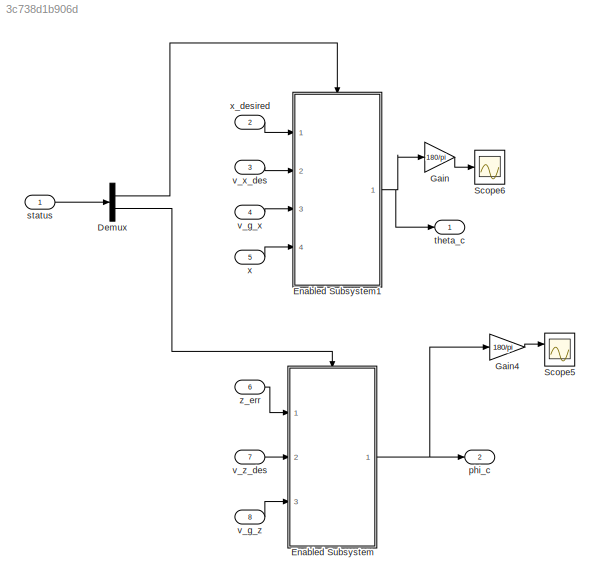
MODEL slx_3c738d1b906d
KIND model
CONFIG AbsTol = auto
CONFIG EnableMultiTasking = off
CONFIG FixedStep = auto
CONFIG MaxStep = auto
CONFIG MinStep = auto
CONFIG RelTol = 1e-3
CONFIG SampleTimeConstraint = Unconstrained
CONFIG Solver = VariableStepAuto
CONFIG SolverName = VariableStepAuto
CONFIG StartTime = 0.0
CONFIG StopTime = 10.0
BLOCK [Demux] Demux
  Outputs = 2
  Ports = [1, 2]
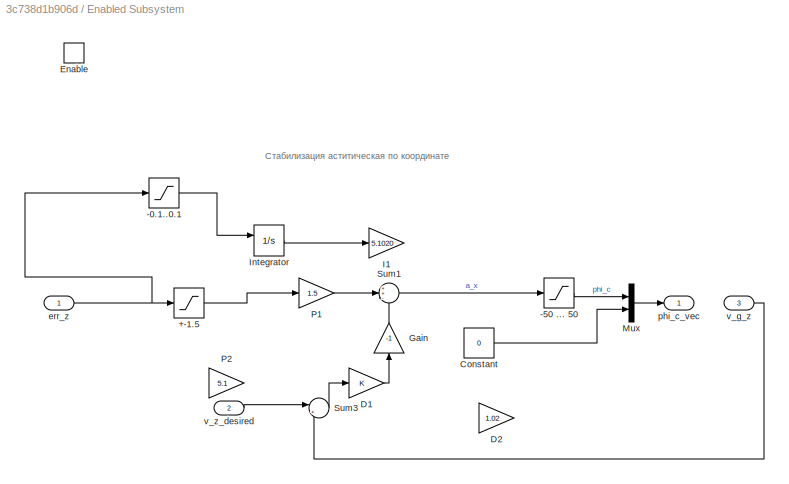
BLOCK [SubSystem] Enabled Subsystem
  Ports = [3, 1, 1]
  RequestExecContextInheritance = off
  TreatAsAtomicUnit = on
BLOCK [Saturate] Enabled Subsystem/+-1.5
  LowerLimit = -1.5
  UpperLimit = 1.5
BLOCK [Saturate] Enabled Subsystem/-0.1..0.1
  LowerLimit = -0.1
  UpperLimit = 0.1
BLOCK [Saturate] Enabled Subsystem/-50 ... 50
  LowerLimit = deg2rad(-50)
  UpperLimit = deg2rad(50)
BLOCK [Constant] Enabled Subsystem/Constant
  Value = 0
BLOCK [Gain] Enabled Subsystem/D1
BLOCK [Gain] Enabled Subsystem/D2
  Commented = on
  Gain = 1.02
BLOCK [EnablePort] Enabled Subsystem/Enable
  Ports = []
BLOCK [Gain] Enabled Subsystem/Gain
  Gain = -1
  NameLocation = right
BLOCK [Gain] Enabled Subsystem/I1
  Gain = 5.1020
BLOCK [Integrator] Enabled Subsystem/Integrator
  ExternalReset = either
  Ports = [2, 1]
BLOCK [Mux] Enabled Subsystem/Mux
  DisplayOption = bar
  Inputs = 2
  Ports = [2, 1]
BLOCK [Gain] Enabled Subsystem/P1
  Gain = 1.5
BLOCK [Gain] Enabled Subsystem/P2
  Commented = on
  Gain = 5.1
BLOCK [Sum] Enabled Subsystem/Sum1
  Inputs = ++-
  Ports = [3, 1]
BLOCK [Sum] Enabled Subsystem/Sum3
  Inputs = |+-
  Ports = [2, 1]
BLOCK [Inport] Enabled Subsystem/err_z
BLOCK [Outport] Enabled Subsystem/phi_c_vec
BLOCK [Inport] Enabled Subsystem/v_g_z
  Port = 3
BLOCK [Inport] Enabled Subsystem/v_z_desired
  Port = 2
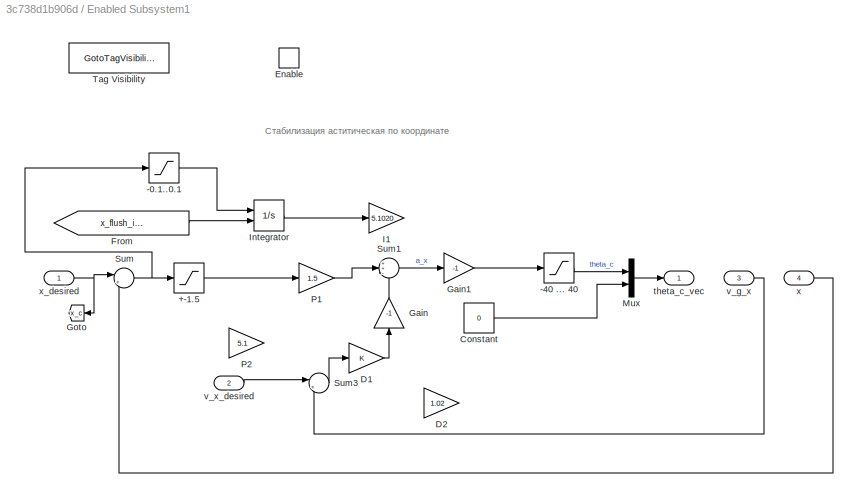
BLOCK [SubSystem] Enabled Subsystem1
  Ports = [4, 1, 1]
  RequestExecContextInheritance = off
  TreatAsAtomicUnit = on
BLOCK [Saturate] Enabled Subsystem1/+-1.5
  LowerLimit = -1.5
  UpperLimit = 1.5
BLOCK [Saturate] Enabled Subsystem1/-0.1..0.1
  LowerLimit = -0.1
  UpperLimit = 0.1
BLOCK [Saturate] Enabled Subsystem1/-40 ... 40
  LowerLimit = deg2rad(-50)
  UpperLimit = deg2rad(50)
BLOCK [Constant] Enabled Subsystem1/Constant
  Value = 0
BLOCK [Gain] Enabled Subsystem1/D1
BLOCK [Gain] Enabled Subsystem1/D2
  Commented = on
  Gain = 1.02
BLOCK [EnablePort] Enabled Subsystem1/Enable
  Ports = []
BLOCK [From] Enabled Subsystem1/From
  GotoTag = x_flush_integrator
BLOCK [Gain] Enabled Subsystem1/Gain
  Gain = -1
  NameLocation = right
BLOCK [Gain] Enabled Subsystem1/Gain1
  Gain = -1
BLOCK [Goto] Enabled Subsystem1/Goto
  GotoTag = x_c
  NameLocation = top
BLOCK [Gain] Enabled Subsystem1/I1
  Gain = 5.1020
BLOCK [Integrator] Enabled Subsystem1/Integrator
  ExternalReset = either
  Ports = [2, 1]
BLOCK [Mux] Enabled Subsystem1/Mux
  DisplayOption = bar
  Inputs = 2
  Ports = [2, 1]
BLOCK [Gain] Enabled Subsystem1/P1
  Gain = 1.5
BLOCK [Gain] Enabled Subsystem1/P2
  Commented = on
  Gain = 5.1
BLOCK [Sum] Enabled Subsystem1/Sum
  Inputs = |+-
  Ports = [2, 1]
BLOCK [Sum] Enabled Subsystem1/Sum1
  Inputs = ++-
  Ports = [3, 1]
BLOCK [Sum] Enabled Subsystem1/Sum3
  Inputs = |+-
  Ports = [2, 1]
BLOCK [GotoTagVisibility] Enabled Subsystem1/Tag Visibility
  GotoTag = x_flush_integrator
BLOCK [Outport] Enabled Subsystem1/theta_c_vec
BLOCK [Inport] Enabled Subsystem1/v_g_x
  Port = 3
BLOCK [Inport] Enabled Subsystem1/v_x_desired
  Port = 2
BLOCK [Inport] Enabled Subsystem1/x
  Port = 4
BLOCK [Inport] Enabled Subsystem1/x_desired
BLOCK [Gain] Gain
  Gain = 180/pi
BLOCK [Gain] Gain4
  Gain = 180/pi
BLOCK [Scope] Scope5
  Floating = off
  NumInputPorts = 2
  Ports = [2]
  ScopeSpecificationString = Simulink.scopes.TimeScopeBlockCfg('CurrentConfiguration', extmgr.ConfigurationSet(extmgr.Configuration('Core','General UI',true),extmgr.Configuration('Core','Source UI',true),extmgr.Configuration('Sources','WiredSimulink',true),extmgr.Configuration('Visuals','Time Domain',true,'SerializedDisplays',{struct('MinYLimReal','-62.5','MaxYLimReal','62.5','YLabelReal','','MinYLimMag','0.00000','MaxYLimMag...<+1521ch>
BLOCK [Scope] Scope6
  Floating = off
  NumInputPorts = 1
  Ports = [1]
  ScopeSpecificationString = Simulink.scopes.TimeScopeBlockCfg('CurrentConfiguration', extmgr.ConfigurationSet(extmgr.Configuration('Core','General UI',true),extmgr.Configuration('Core','Source UI',true),extmgr.Configuration('Sources','WiredSimulink',true,'DataLoggingVariableName','ScopeData1'),extmgr.Configuration('Visuals','Time Domain',true,'SerializedDisplays',{struct('MinYLimReal','-62.5','MaxYLimReal','62.5','YLabelReal...<+1531ch>
BLOCK [Outport] phi_c
  Port = 2
BLOCK [Inport] status
BLOCK [Outport] theta_c
BLOCK [Inport] v_g_x
  Port = 4
BLOCK [Inport] v_g_z
  Port = 8
BLOCK [Inport] v_x_des
  Port = 3
BLOCK [Inport] v_z_des
  Port = 7
BLOCK [Inport] x
  Port = 5
BLOCK [Inport] x_desired
  Port = 2
BLOCK [Inport] z_err
  Port = 6
ANNOTATION Enabled Subsystem: Стабилизация аститическая по координате
ANNOTATION Enabled Subsystem1: Стабилизация аститическая по координате
LINE Demux:1 -> Enabled Subsystem1:enable
LINE Demux:2 -> Enabled Subsystem:enable
LINE Enabled Subsystem/+-1.5:1 -> Enabled Subsystem/P1:1
LINE Enabled Subsystem/-0.1..0.1:1 -> Enabled Subsystem/Integrator:1
LINE Enabled Subsystem/-50 ... 50:1 -> Enabled Subsystem/Mux:1
LINE Enabled Subsystem/Constant:1 -> Enabled Subsystem/Mux:2
LINE Enabled Subsystem/D1:1 -> Enabled Subsystem/Gain:1
LINE Enabled Subsystem/Gain:1 -> Enabled Subsystem/Sum1:3
LINE Enabled Subsystem/Integrator:1 -> Enabled Subsystem/I1:1
LINE Enabled Subsystem/Mux:1 -> Enabled Subsystem/phi_c_vec:1
LINE Enabled Subsystem/P1:1 -> Enabled Subsystem/Sum1:2
LINE Enabled Subsystem/Sum1:1 -> Enabled Subsystem/-50 ... 50:1
LINE Enabled Subsystem/Sum3:1 -> Enabled Subsystem/D1:1
NET Enabled Subsystem/err_z:1 -> Enabled Subsystem/+-1.5:1, Enabled Subsystem/-0.1..0.1:1
LINE Enabled Subsystem/v_g_z:1 -> Enabled Subsystem/Sum3:2
LINE Enabled Subsystem/v_z_desired:1 -> Enabled Subsystem/Sum3:1
LINE Enabled Subsystem1/+-1.5:1 -> Enabled Subsystem1/P1:1
LINE Enabled Subsystem1/-0.1..0.1:1 -> Enabled Subsystem1/Integrator:1
LINE Enabled Subsystem1/-40 ... 40:1 -> Enabled Subsystem1/Mux:1
LINE Enabled Subsystem1/Constant:1 -> Enabled Subsystem1/Mux:2
LINE Enabled Subsystem1/D1:1 -> Enabled Subsystem1/Gain:1
LINE Enabled Subsystem1/From:1 -> Enabled Subsystem1/Integrator:2
LINE Enabled Subsystem1/Gain1:1 -> Enabled Subsystem1/-40 ... 40:1
LINE Enabled Subsystem1/Gain:1 -> Enabled Subsystem1/Sum1:3
LINE Enabled Subsystem1/Integrator:1 -> Enabled Subsystem1/I1:1
LINE Enabled Subsystem1/Mux:1 -> Enabled Subsystem1/theta_c_vec:1
LINE Enabled Subsystem1/P1:1 -> Enabled Subsystem1/Sum1:2
LINE Enabled Subsystem1/Sum1:1 -> Enabled Subsystem1/Gain1:1
LINE Enabled Subsystem1/Sum3:1 -> Enabled Subsystem1/D1:1
NET Enabled Subsystem1/Sum:1 -> Enabled Subsystem1/+-1.5:1, Enabled Subsystem1/-0.1..0.1:1
LINE Enabled Subsystem1/v_g_x:1 -> Enabled Subsystem1/Sum3:2
LINE Enabled Subsystem1/v_x_desired:1 -> Enabled Subsystem1/Sum3:1
LINE Enabled Subsystem1/x:1 -> Enabled Subsystem1/Sum:2
NET Enabled Subsystem1/x_desired:1 -> Enabled Subsystem1/Goto:1, Enabled Subsystem1/Sum:1
NET Enabled Subsystem1:1 -> Gain:1, theta_c:1
NET Enabled Subsystem:1 -> Gain4:1, phi_c:1
LINE Gain4:1 -> Scope5:1
LINE Gain:1 -> Scope6:1
LINE status:1 -> Demux:1
LINE v_g_x:1 -> Enabled Subsystem1:3
LINE v_g_z:1 -> Enabled Subsystem:3
LINE v_x_des:1 -> Enabled Subsystem1:2
LINE v_z_des:1 -> Enabled Subsystem:2
LINE x:1 -> Enabled Subsystem1:4
LINE x_desired:1 -> Enabled Subsystem1:1
LINE z_err:1 -> Enabled Subsystem:1
note: NET lines group one-source signal fan-out (src -> all destinations, sorted); 1:1 wires keep LINE
